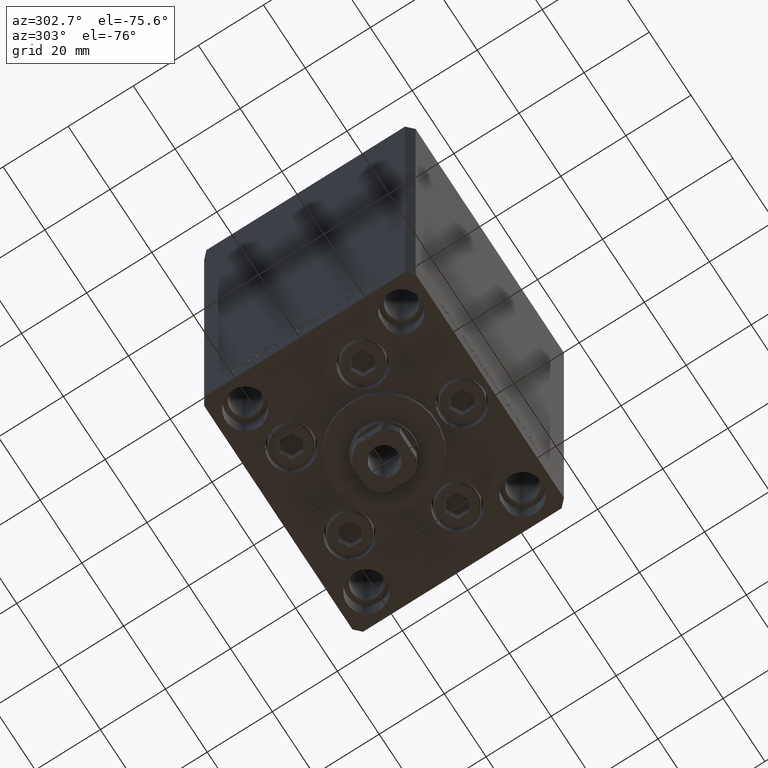
[diagram: clean part render]
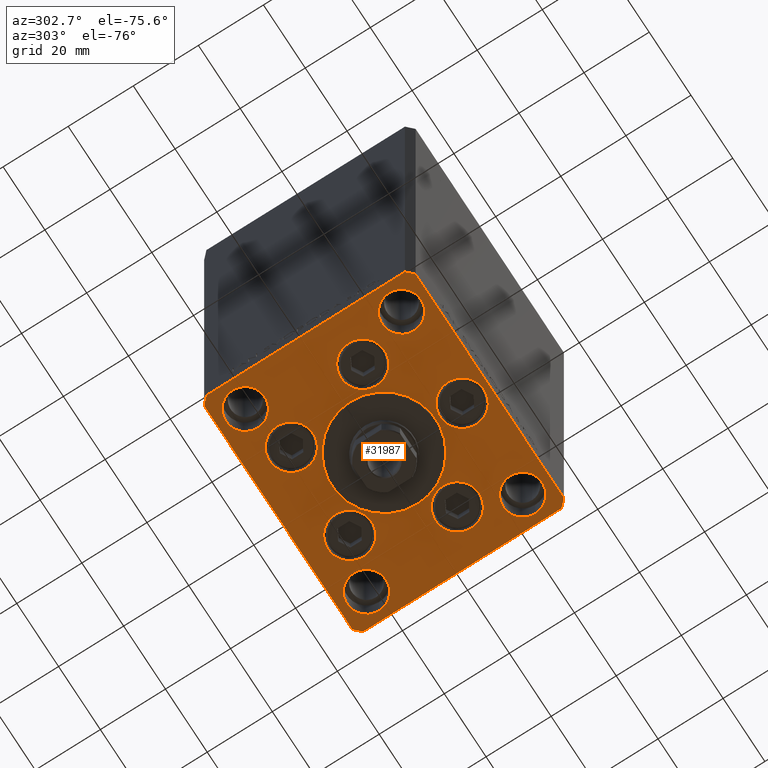
[diagram: same view with one face highlighted and labeled with its STEP entity id]
A machine part, auxiliary view. The second image highlights one B-rep face of the part: STEP entity #31987.
In plain terms, the highlighted planar face has unit normal (0, 0, -1).
Its self-contained STEP definition (entity closure, byte-faithful):
#16 = FACE_BOUND ( 'NONE', #27246, .T. ) ;
#126 = DIRECTION ( 'NONE',  ( 0.000000000000000000, 0.000000000000000000, 1.000000000000000000 ) ) ;
#286 = EDGE_CURVE ( 'NONE', #27862, #8358, #45759, .T. ) ;
#684 = AXIS2_PLACEMENT_3D ( 'NONE', #5038, #30700, #4048 ) ;
#894 = AXIS2_PLACEMENT_3D ( 'NONE', #17853, #2898, #18099 ) ;
#1116 = ORIENTED_EDGE ( 'NONE', *, *, #6892, .T. ) ;
#1153 = CARTESIAN_POINT ( 'NONE',  ( 20.74106857963323947, 19.50000000000000000, 0.000000000000000000 ) ) ;
#1159 = DIRECTION ( 'NONE',  ( 0.000000000000000000, 0.000000000000000000, 1.000000000000000000 ) ) ;
#1375 = DIRECTION ( 'NONE',  ( 0.7071067811865463515, 0.7071067811865487940, 0.000000000000000000 ) ) ;
#1533 = EDGE_CURVE ( 'NONE', #34090, #1744, #3521, .T. ) ;
#1571 = DIRECTION ( 'NONE',  ( 0.000000000000000000, 0.000000000000000000, 1.000000000000000000 ) ) ;
#1744 = VERTEX_POINT ( 'NONE', #2239 ) ;
#1778 = CARTESIAN_POINT ( 'NONE',  ( 15.87741699796952410, -8.000000000000000000, 0.000000000000000000 ) ) ;
#2041 = CARTESIAN_POINT ( 'NONE',  ( 37.50000000000000711, -30.49999999999992895, 0.000000000000000000 ) ) ;
#2216 = CARTESIAN_POINT ( 'NONE',  ( 23.00000000000000000, 24.00000000000000355, 0.000000000000000000 ) ) ;
#2239 = CARTESIAN_POINT ( 'NONE',  ( -35.50000000000000711, 32.49999999999997868, 0.000000000000000000 ) ) ;
#2898 = DIRECTION ( 'NONE',  ( 0.000000000000000000, 0.000000000000000000, 1.000000000000000000 ) ) ;
#2900 = EDGE_CURVE ( 'NONE', #17282, #20128, #43447, .T. ) ;
#3044 = VECTOR ( 'NONE', #9346, 1000.000000000000000 ) ;
#3204 = VERTEX_POINT ( 'NONE', #27028 ) ;
#3521 = LINE ( 'NONE', #45628, #41028 ) ;
#3621 = CIRCLE ( 'NONE', #16353, 6.750000000000000000 ) ;
#3749 = FACE_OUTER_BOUND ( 'NONE', #23911, .T. ) ;
#3756 = VECTOR ( 'NONE', #7267, 1000.000000000000000 ) ;
#4048 = DIRECTION ( 'NONE',  ( 1.000000000000000000, 0.000000000000000000, 0.000000000000000000 ) ) ;
#5038 = CARTESIAN_POINT ( 'NONE',  ( 0.000000000000000000, -24.00000000000001066, 0.000000000000000000 ) ) ;
#5471 = VERTEX_POINT ( 'NONE', #2216 ) ;
#5646 = DIRECTION ( 'NONE',  ( 0.000000000000000000, 0.000000000000000000, 1.000000000000000000 ) ) ;
#5677 = VERTEX_POINT ( 'NONE', #40519 ) ;
#6148 = ORIENTED_EDGE ( 'NONE', *, *, #8001, .F. ) ;
#6278 = ORIENTED_EDGE ( 'NONE', *, *, #19586, .F. ) ;
#6314 = ORIENTED_EDGE ( 'NONE', *, *, #25324, .F. ) ;
#6892 = EDGE_CURVE ( 'NONE', #3204, #48325, #17303, .T. ) ;
#6935 = ORIENTED_EDGE ( 'NONE', *, *, #8667, .F. ) ;
#6966 = EDGE_LOOP ( 'NONE', ( #48705, #33914 ) ) ;
#6978 = CARTESIAN_POINT ( 'NONE',  ( -29.00000000000000000, -23.99999999999999645, 0.000000000000000000 ) ) ;
#6987 = AXIS2_PLACEMENT_3D ( 'NONE', #9777, #17981, #20986 ) ;
#7267 = DIRECTION ( 'NONE',  ( -0.7071067811865524577, 0.7071067811865426878, 0.000000000000000000 ) ) ;
#7297 = EDGE_CURVE ( 'NONE', #13022, #21883, #45191, .T. ) ;
#7491 = FACE_BOUND ( 'NONE', #40849, .T. ) ;
#7633 = AXIS2_PLACEMENT_3D ( 'NONE', #19689, #22938, #15221 ) ;
#7927 = CARTESIAN_POINT ( 'NONE',  ( -15.87741699796953476, -8.000000000000000000, 0.000000000000000000 ) ) ;
#8001 = EDGE_CURVE ( 'NONE', #43630, #22501, #20584, .T. ) ;
#8098 = CARTESIAN_POINT ( 'NONE',  ( 13.99106857963324124, 19.50000000000000000, 0.000000000000000000 ) ) ;
#8223 = EDGE_CURVE ( 'NONE', #31189, #38631, #11011, .T. ) ;
#8233 = FACE_BOUND ( 'NONE', #36653, .T. ) ;
#8358 = VERTEX_POINT ( 'NONE', #28024 ) ;
#8521 = CARTESIAN_POINT ( 'NONE',  ( -13.99106857963324124, 19.50000000000000000, 0.000000000000000000 ) ) ;
#8667 = EDGE_CURVE ( 'NONE', #29030, #19003, #24560, .T. ) ;
#9346 = DIRECTION ( 'NONE',  ( 2.275047181608926165E-16, -1.000000000000000000, 0.000000000000000000 ) ) ;
#9486 = VECTOR ( 'NONE', #1375, 1000.000000000000000 ) ;
#9660 = AXIS2_PLACEMENT_3D ( 'NONE', #39225, #12824, #20782 ) ;
#9758 = EDGE_LOOP ( 'NONE', ( #28572, #18289 ) ) ;
#9777 = CARTESIAN_POINT ( 'NONE',  ( -22.62741699796953299, -8.000000000000000000, 0.000000000000000000 ) ) ;
#10047 = EDGE_CURVE ( 'NONE', #10879, #5677, #19935, .T. ) ;
#10199 = VECTOR ( 'NONE', #15700, 1000.000000000000000 ) ;
#10242 = CARTESIAN_POINT ( 'NONE',  ( 35.50000000000001421, -32.49999999999992184, 0.000000000000000000 ) ) ;
#10477 = CIRCLE ( 'NONE', #894, 6.000000000000001776 ) ;
#10486 = CARTESIAN_POINT ( 'NONE',  ( -6.750000000001552536, -24.00000000000001066, 0.000000000000000000 ) ) ;
#10879 = VERTEX_POINT ( 'NONE', #2041 ) ;
#11011 = CIRCLE ( 'NONE', #43659, 6.750000000000000000 ) ;
#11251 = VERTEX_POINT ( 'NONE', #38562 ) ;
#11323 = AXIS2_PLACEMENT_3D ( 'NONE', #8098, #126, #45966 ) ;
#11730 = PLANE ( 'NONE',  #7633 ) ;
#11980 = FACE_BOUND ( 'NONE', #28284, .T. ) ;
#12369 = AXIS2_PLACEMENT_3D ( 'NONE', #12596, #31512, #16817 ) ;
#12596 = CARTESIAN_POINT ( 'NONE',  ( 29.00000000000000355, -23.99999999999999645, 0.000000000000000000 ) ) ;
#12824 = DIRECTION ( 'NONE',  ( 0.000000000000000000, 0.000000000000000000, 1.000000000000000000 ) ) ;
#13022 = VERTEX_POINT ( 'NONE', #7927 ) ;
#13123 = DIRECTION ( 'NONE',  ( 1.000000000000000000, 0.000000000000000000, 0.000000000000000000 ) ) ;
#13487 = CARTESIAN_POINT ( 'NONE',  ( -23.00000000000000000, -23.99999999999999645, 0.000000000000000000 ) ) ;
#13495 = EDGE_CURVE ( 'NONE', #35801, #10879, #42987, .T. ) ;
#14195 = AXIS2_PLACEMENT_3D ( 'NONE', #16710, #43120, #27677 ) ;
#15215 = ORIENTED_EDGE ( 'NONE', *, *, #10047, .T. ) ;
#15221 = DIRECTION ( 'NONE',  ( 1.000000000000000000, 0.000000000000000000, 0.000000000000000000 ) ) ;
#15348 = AXIS2_PLACEMENT_3D ( 'NONE', #39894, #24696, #21453 ) ;
#15700 = DIRECTION ( 'NONE',  ( 0.000000000000000000, 1.000000000000000000, 0.000000000000000000 ) ) ;
#15831 = ORIENTED_EDGE ( 'NONE', *, *, #22928, .F. ) ;
#15965 = ORIENTED_EDGE ( 'NONE', *, *, #22663, .T. ) ;
#16005 = DIRECTION ( 'NONE',  ( 1.000000000000000000, 0.000000000000000000, 0.000000000000000000 ) ) ;
#16353 = AXIS2_PLACEMENT_3D ( 'NONE', #8521, #47150, #20726 ) ;
#16483 = ORIENTED_EDGE ( 'NONE', *, *, #38154, .T. ) ;
#16710 = CARTESIAN_POINT ( 'NONE',  ( 29.00000000000000000, 24.00000000000000355, 0.000000000000000000 ) ) ;
#16817 = DIRECTION ( 'NONE',  ( 1.000000000000000000, 0.000000000000000000, 0.000000000000000000 ) ) ;
#16961 = LINE ( 'NONE', #27429, #33746 ) ;
#17242 = CIRCLE ( 'NONE', #41107, 6.749999999999999112 ) ;
#17282 = VERTEX_POINT ( 'NONE', #13487 ) ;
#17297 = VERTEX_POINT ( 'NONE', #1778 ) ;
#17303 = LINE ( 'NONE', #24541, #3044 ) ;
#17472 = EDGE_CURVE ( 'NONE', #11251, #40877, #26339, .T. ) ;
#17853 = CARTESIAN_POINT ( 'NONE',  ( -29.00000000000000000, 24.00000000000000711, 0.000000000000000000 ) ) ;
#17981 = DIRECTION ( 'NONE',  ( 0.000000000000000000, 0.000000000000000000, 1.000000000000000000 ) ) ;
#18099 = DIRECTION ( 'NONE',  ( 1.000000000000000000, 0.000000000000000000, 0.000000000000000000 ) ) ;
#18158 = EDGE_CURVE ( 'NONE', #5471, #29622, #31123, .T. ) ;
#18289 = ORIENTED_EDGE ( 'NONE', *, *, #286, .F. ) ;
#18343 = CARTESIAN_POINT ( 'NONE',  ( -20.74106857963324302, 19.50000000000000000, 0.000000000000000000 ) ) ;
#19003 = VERTEX_POINT ( 'NONE', #30462 ) ;
#19206 = FACE_BOUND ( 'NONE', #21086, .T. ) ;
#19586 = EDGE_CURVE ( 'NONE', #45667, #45607, #10477, .T. ) ;
#19689 = CARTESIAN_POINT ( 'NONE',  ( 0.000000000000000000, 0.000000000000000000, 0.000000000000000000 ) ) ;
#19743 = DIRECTION ( 'NONE',  ( 0.000000000000000000, 0.000000000000000000, 1.000000000000000000 ) ) ;
#19834 = CARTESIAN_POINT ( 'NONE',  ( 35.50000000000000000, 32.49999999999999289, 0.000000000000000000 ) ) ;
#19935 = LINE ( 'NONE', #26921, #10199 ) ;
#19943 = AXIS2_PLACEMENT_3D ( 'NONE', #43492, #39505, #39011 ) ;
#20101 = CARTESIAN_POINT ( 'NONE',  ( -29.00000000000000000, -23.99999999999999645, 0.000000000000000000 ) ) ;
#20128 = VERTEX_POINT ( 'NONE', #47342 ) ;
#20316 = CARTESIAN_POINT ( 'NONE',  ( 35.50000000000001421, -32.49999999999992184, 0.000000000000000000 ) ) ;
#20510 = DIRECTION ( 'NONE',  ( 1.000000000000000000, 0.000000000000000000, 0.000000000000000000 ) ) ;
#20584 = CIRCLE ( 'NONE', #33308, 6.749999999999997335 ) ;
#20726 = DIRECTION ( 'NONE',  ( 1.000000000000000000, 0.000000000000000000, 0.000000000000000000 ) ) ;
#20782 = DIRECTION ( 'NONE',  ( 1.000000000000000000, 0.000000000000000000, 0.000000000000000000 ) ) ;
#20986 = DIRECTION ( 'NONE',  ( 1.000000000000000000, 0.000000000000000000, 0.000000000000000000 ) ) ;
#21086 = EDGE_LOOP ( 'NONE', ( #39534, #31699 ) ) ;
#21453 = DIRECTION ( 'NONE',  ( 1.000000000000000000, 0.000000000000000000, 0.000000000000000000 ) ) ;
#21628 = CARTESIAN_POINT ( 'NONE',  ( 22.62741699796953299, -8.000000000000000000, 0.000000000000000000 ) ) ;
#21883 = VERTEX_POINT ( 'NONE', #37421 ) ;
#21959 = AXIS2_PLACEMENT_3D ( 'NONE', #20101, #1159, #47741 ) ;
#21968 = CIRCLE ( 'NONE', #34701, 16.00000000000000355 ) ;
#22329 = CIRCLE ( 'NONE', #29515, 6.750000000000009770 ) ;
#22501 = VERTEX_POINT ( 'NONE', #1153 ) ;
#22663 = EDGE_CURVE ( 'NONE', #1744, #3204, #40498, .T. ) ;
#22689 = FACE_BOUND ( 'NONE', #6966, .T. ) ;
#22928 = EDGE_CURVE ( 'NONE', #45607, #45667, #26471, .T. ) ;
#22938 = DIRECTION ( 'NONE',  ( -0.000000000000000000, 0.000000000000000000, 1.000000000000000000 ) ) ;
#23157 = DIRECTION ( 'NONE',  ( 0.000000000000000000, 0.000000000000000000, 1.000000000000000000 ) ) ;
#23583 = DIRECTION ( 'NONE',  ( 0.000000000000000000, 0.000000000000000000, 1.000000000000000000 ) ) ;
#23813 = VECTOR ( 'NONE', #32386, 1000.000000000000000 ) ;
#23911 = EDGE_LOOP ( 'NONE', ( #28845, #47392, #41588, #15215, #16483, #43709, #15965, #1116 ) ) ;
#24220 = EDGE_CURVE ( 'NONE', #49157, #17297, #48670, .T. ) ;
#24266 = CARTESIAN_POINT ( 'NONE',  ( -35.00000000000000000, 24.00000000000000711, 0.000000000000000000 ) ) ;
#24541 = CARTESIAN_POINT ( 'NONE',  ( -37.50000000000001421, 30.50000000000000000, 0.000000000000000000 ) ) ;
#24560 = CIRCLE ( 'NONE', #684, 6.750000000001552536 ) ;
#24581 = CARTESIAN_POINT ( 'NONE',  ( -13.99106857963324124, 19.50000000000000000, 0.000000000000000000 ) ) ;
#24696 = DIRECTION ( 'NONE',  ( 0.000000000000000000, 0.000000000000000000, 1.000000000000000000 ) ) ;
#24770 = AXIS2_PLACEMENT_3D ( 'NONE', #39339, #23157, #38358 ) ;
#25145 = AXIS2_PLACEMENT_3D ( 'NONE', #26729, #19743, #16005 ) ;
#25324 = EDGE_CURVE ( 'NONE', #22501, #43630, #33583, .T. ) ;
#26047 = CARTESIAN_POINT ( 'NONE',  ( -35.50000000000000711, 32.49999999999997868, 0.000000000000000000 ) ) ;
#26216 = LINE ( 'NONE', #41401, #3756 ) ;
#26339 = CIRCLE ( 'NONE', #24770, 16.00000000000000355 ) ;
#26471 = CIRCLE ( 'NONE', #15348, 6.000000000000001776 ) ;
#26729 = CARTESIAN_POINT ( 'NONE',  ( 29.00000000000000355, -23.99999999999999645, 0.000000000000000000 ) ) ;
#26784 = EDGE_CURVE ( 'NONE', #48325, #34577, #16961, .T. ) ;
#26921 = CARTESIAN_POINT ( 'NONE',  ( 37.50000000000000711, -30.49999999999992895, 0.000000000000000000 ) ) ;
#27028 = CARTESIAN_POINT ( 'NONE',  ( -37.50000000000001421, 30.50000000000000000, 0.000000000000000000 ) ) ;
#27122 = EDGE_LOOP ( 'NONE', ( #15831, #6278 ) ) ;
#27179 = DIRECTION ( 'NONE',  ( -1.000000000000000000, -1.954618001100627573E-16, 0.000000000000000000 ) ) ;
#27246 = EDGE_LOOP ( 'NONE', ( #42653, #41084 ) ) ;
#27429 = CARTESIAN_POINT ( 'NONE',  ( -37.50000000000000000, -30.50000000000004263, 0.000000000000000000 ) ) ;
#27677 = DIRECTION ( 'NONE',  ( 1.000000000000000000, 0.000000000000000000, 0.000000000000000000 ) ) ;
#27707 = ORIENTED_EDGE ( 'NONE', *, *, #30745, .F. ) ;
#27862 = VERTEX_POINT ( 'NONE', #41842 ) ;
#28024 = CARTESIAN_POINT ( 'NONE',  ( 35.00000000000000000, -23.99999999999999645, 0.000000000000000000 ) ) ;
#28284 = EDGE_LOOP ( 'NONE', ( #6314, #6148 ) ) ;
#28572 = ORIENTED_EDGE ( 'NONE', *, *, #31752, .F. ) ;
#28845 = ORIENTED_EDGE ( 'NONE', *, *, #26784, .T. ) ;
#29030 = VERTEX_POINT ( 'NONE', #10486 ) ;
#29101 = CARTESIAN_POINT ( 'NONE',  ( -7.241068579633241242, 19.50000000000000000, 0.000000000000000000 ) ) ;
#29118 = EDGE_CURVE ( 'NONE', #20128, #17282, #40172, .T. ) ;
#29362 = DIRECTION ( 'NONE',  ( 0.000000000000000000, 0.000000000000000000, 1.000000000000000000 ) ) ;
#29515 = AXIS2_PLACEMENT_3D ( 'NONE', #36883, #36638, #37122 ) ;
#29622 = VERTEX_POINT ( 'NONE', #37982 ) ;
#30462 = CARTESIAN_POINT ( 'NONE',  ( 6.750000000001552536, -24.00000000000001066, 0.000000000000000000 ) ) ;
#30700 = DIRECTION ( 'NONE',  ( 0.000000000000000000, 0.000000000000000000, 1.000000000000000000 ) ) ;
#30745 = EDGE_CURVE ( 'NONE', #38631, #31189, #3621, .T. ) ;
#31123 = CIRCLE ( 'NONE', #9660, 6.000000000000001776 ) ;
#31189 = VERTEX_POINT ( 'NONE', #18343 ) ;
#31273 = VECTOR ( 'NONE', #44489, 1000.000000000000000 ) ;
#31512 = DIRECTION ( 'NONE',  ( 0.000000000000000000, 0.000000000000000000, 1.000000000000000000 ) ) ;
#31699 = ORIENTED_EDGE ( 'NONE', *, *, #47805, .F. ) ;
#31752 = EDGE_CURVE ( 'NONE', #8358, #27862, #46623, .T. ) ;
#31906 = DIRECTION ( 'NONE',  ( 0.7071067811865512365, -0.7071067811865439090, 0.000000000000000000 ) ) ;
#31960 = ORIENTED_EDGE ( 'NONE', *, *, #17472, .F. ) ;
#31987 = ADVANCED_FACE ( 'NONE', ( #34642, #7491, #11980, #19206, #34400, #8233, #22689, #41379, #16, #38617, #3749 ), #11730, .T. ) ;
#32249 = EDGE_LOOP ( 'NONE', ( #35519, #6935 ) ) ;
#32386 = DIRECTION ( 'NONE',  ( 1.000000000000000000, 1.172770800660376149E-15, 0.000000000000000000 ) ) ;
#33172 = EDGE_CURVE ( 'NONE', #40877, #11251, #21968, .T. ) ;
#33308 = AXIS2_PLACEMENT_3D ( 'NONE', #35050, #23583, #13123 ) ;
#33550 = AXIS2_PLACEMENT_3D ( 'NONE', #21628, #29362, #36579 ) ;
#33583 = CIRCLE ( 'NONE', #11323, 6.749999999999997335 ) ;
#33641 = DIRECTION ( 'NONE',  ( 1.000000000000000000, 0.000000000000000000, 0.000000000000000000 ) ) ;
#33746 = VECTOR ( 'NONE', #31906, 1000.000000000000000 ) ;
#33914 = ORIENTED_EDGE ( 'NONE', *, *, #18158, .F. ) ;
#33958 = ORIENTED_EDGE ( 'NONE', *, *, #7297, .F. ) ;
#34090 = VERTEX_POINT ( 'NONE', #19834 ) ;
#34124 = EDGE_CURVE ( 'NONE', #21883, #13022, #17242, .T. ) ;
#34400 = FACE_BOUND ( 'NONE', #32249, .T. ) ;
#34577 = VERTEX_POINT ( 'NONE', #39573 ) ;
#34642 = FACE_BOUND ( 'NONE', #40885, .T. ) ;
#34674 = CARTESIAN_POINT ( 'NONE',  ( -37.50000000000000000, -30.50000000000004263, 0.000000000000000000 ) ) ;
#34701 = AXIS2_PLACEMENT_3D ( 'NONE', #47658, #1571, #20510 ) ;
#35050 = CARTESIAN_POINT ( 'NONE',  ( 13.99106857963324124, 19.50000000000000000, 0.000000000000000000 ) ) ;
#35519 = ORIENTED_EDGE ( 'NONE', *, *, #47140, .F. ) ;
#35801 = VERTEX_POINT ( 'NONE', #10242 ) ;
#36451 = ORIENTED_EDGE ( 'NONE', *, *, #8223, .F. ) ;
#36579 = DIRECTION ( 'NONE',  ( 1.000000000000000000, 0.000000000000000000, 0.000000000000000000 ) ) ;
#36638 = DIRECTION ( 'NONE',  ( 0.000000000000000000, 0.000000000000000000, 1.000000000000000000 ) ) ;
#36653 = EDGE_LOOP ( 'NONE', ( #33958, #43732 ) ) ;
#36883 = CARTESIAN_POINT ( 'NONE',  ( 22.62741699796953299, -8.000000000000000000, 0.000000000000000000 ) ) ;
#37122 = DIRECTION ( 'NONE',  ( 1.000000000000000000, 0.000000000000000000, 0.000000000000000000 ) ) ;
#37375 = DIRECTION ( 'NONE',  ( 0.000000000000000000, 0.000000000000000000, 1.000000000000000000 ) ) ;
#37421 = CARTESIAN_POINT ( 'NONE',  ( -29.37741699796953654, -8.000000000000000000, 0.000000000000000000 ) ) ;
#37982 = CARTESIAN_POINT ( 'NONE',  ( 35.00000000000000000, 24.00000000000000355, 0.000000000000000000 ) ) ;
#38154 = EDGE_CURVE ( 'NONE', #5677, #34090, #26216, .T. ) ;
#38358 = DIRECTION ( 'NONE',  ( 1.000000000000000000, 0.000000000000000000, 0.000000000000000000 ) ) ;
#38562 = CARTESIAN_POINT ( 'NONE',  ( 16.00000000000000355, -4.979459025271462852E-15, 0.000000000000000000 ) ) ;
#38617 = FACE_BOUND ( 'NONE', #9758, .T. ) ;
#38631 = VERTEX_POINT ( 'NONE', #29101 ) ;
#38743 = CARTESIAN_POINT ( 'NONE',  ( 29.37741699796954364, -8.000000000000000000, 0.000000000000000000 ) ) ;
#38763 = CARTESIAN_POINT ( 'NONE',  ( -22.62741699796953299, -8.000000000000000000, 0.000000000000000000 ) ) ;
#39011 = DIRECTION ( 'NONE',  ( 1.000000000000000000, 0.000000000000000000, 0.000000000000000000 ) ) ;
#39225 = CARTESIAN_POINT ( 'NONE',  ( 29.00000000000000000, 24.00000000000000355, 0.000000000000000000 ) ) ;
#39339 = CARTESIAN_POINT ( 'NONE',  ( 0.000000000000000000, -6.938893903907228378E-15, 0.000000000000000000 ) ) ;
#39372 = AXIS2_PLACEMENT_3D ( 'NONE', #6978, #37375, #33641 ) ;
#39505 = DIRECTION ( 'NONE',  ( 0.000000000000000000, 0.000000000000000000, 1.000000000000000000 ) ) ;
#39534 = ORIENTED_EDGE ( 'NONE', *, *, #24220, .F. ) ;
#39573 = CARTESIAN_POINT ( 'NONE',  ( -35.50000000000001421, -32.50000000000000711, 0.000000000000000000 ) ) ;
#39894 = CARTESIAN_POINT ( 'NONE',  ( -29.00000000000000000, 24.00000000000000711, 0.000000000000000000 ) ) ;
#40172 = CIRCLE ( 'NONE', #39372, 6.000000000000001776 ) ;
#40357 = CARTESIAN_POINT ( 'NONE',  ( -35.50000000000001421, -32.50000000000000711, 0.000000000000000000 ) ) ;
#40423 = CIRCLE ( 'NONE', #14195, 6.000000000000001776 ) ;
#40498 = LINE ( 'NONE', #26047, #31273 ) ;
#40519 = CARTESIAN_POINT ( 'NONE',  ( 37.50000000000000711, 30.50000000000001421, 0.000000000000000000 ) ) ;
#40781 = EDGE_CURVE ( 'NONE', #29622, #5471, #40423, .T. ) ;
#40847 = CARTESIAN_POINT ( 'NONE',  ( -16.00000000000000355, -6.938893903907228378E-15, 0.000000000000000000 ) ) ;
#40849 = EDGE_LOOP ( 'NONE', ( #27707, #36451 ) ) ;
#40877 = VERTEX_POINT ( 'NONE', #40847 ) ;
#40885 = EDGE_LOOP ( 'NONE', ( #46892, #31960 ) ) ;
#41028 = VECTOR ( 'NONE', #27179, 1000.000000000000000 ) ;
#41032 = CARTESIAN_POINT ( 'NONE',  ( 7.241068579633242130, 19.50000000000000000, 0.000000000000000000 ) ) ;
#41084 = ORIENTED_EDGE ( 'NONE', *, *, #29118, .F. ) ;
#41107 = AXIS2_PLACEMENT_3D ( 'NONE', #38763, #42754, #47237 ) ;
#41379 = FACE_BOUND ( 'NONE', #27122, .T. ) ;
#41401 = CARTESIAN_POINT ( 'NONE',  ( 37.50000000000000711, 30.50000000000001421, 0.000000000000000000 ) ) ;
#41588 = ORIENTED_EDGE ( 'NONE', *, *, #13495, .T. ) ;
#41842 = CARTESIAN_POINT ( 'NONE',  ( 23.00000000000000711, -23.99999999999999645, 0.000000000000000000 ) ) ;
#42653 = ORIENTED_EDGE ( 'NONE', *, *, #2900, .F. ) ;
#42754 = DIRECTION ( 'NONE',  ( 0.000000000000000000, 0.000000000000000000, 1.000000000000000000 ) ) ;
#42987 = LINE ( 'NONE', #20316, #9486 ) ;
#43120 = DIRECTION ( 'NONE',  ( 0.000000000000000000, 0.000000000000000000, 1.000000000000000000 ) ) ;
#43290 = EDGE_CURVE ( 'NONE', #34577, #35801, #47357, .T. ) ;
#43447 = CIRCLE ( 'NONE', #21959, 6.000000000000001776 ) ;
#43492 = CARTESIAN_POINT ( 'NONE',  ( 0.000000000000000000, -24.00000000000001066, 0.000000000000000000 ) ) ;
#43630 = VERTEX_POINT ( 'NONE', #41032 ) ;
#43659 = AXIS2_PLACEMENT_3D ( 'NONE', #24581, #5646, #47745 ) ;
#43709 = ORIENTED_EDGE ( 'NONE', *, *, #1533, .T. ) ;
#43732 = ORIENTED_EDGE ( 'NONE', *, *, #34124, .F. ) ;
#44489 = DIRECTION ( 'NONE',  ( -0.7071067811865524577, -0.7071067811865426878, 0.000000000000000000 ) ) ;
#45191 = CIRCLE ( 'NONE', #6987, 6.749999999999999112 ) ;
#45407 = CIRCLE ( 'NONE', #19943, 6.750000000001552536 ) ;
#45607 = VERTEX_POINT ( 'NONE', #49217 ) ;
#45628 = CARTESIAN_POINT ( 'NONE',  ( 35.50000000000000000, 32.49999999999999289, 0.000000000000000000 ) ) ;
#45667 = VERTEX_POINT ( 'NONE', #24266 ) ;
#45759 = CIRCLE ( 'NONE', #12369, 5.999999999999998224 ) ;
#45966 = DIRECTION ( 'NONE',  ( 1.000000000000000000, 0.000000000000000000, 0.000000000000000000 ) ) ;
#46623 = CIRCLE ( 'NONE', #25145, 5.999999999999998224 ) ;
#46892 = ORIENTED_EDGE ( 'NONE', *, *, #33172, .F. ) ;
#47140 = EDGE_CURVE ( 'NONE', #19003, #29030, #45407, .T. ) ;
#47150 = DIRECTION ( 'NONE',  ( 0.000000000000000000, 0.000000000000000000, 1.000000000000000000 ) ) ;
#47237 = DIRECTION ( 'NONE',  ( 1.000000000000000000, 0.000000000000000000, 0.000000000000000000 ) ) ;
#47342 = CARTESIAN_POINT ( 'NONE',  ( -35.00000000000000000, -23.99999999999999645, 0.000000000000000000 ) ) ;
#47357 = LINE ( 'NONE', #40357, #23813 ) ;
#47392 = ORIENTED_EDGE ( 'NONE', *, *, #43290, .T. ) ;
#47658 = CARTESIAN_POINT ( 'NONE',  ( 0.000000000000000000, -6.938893903907228378E-15, 0.000000000000000000 ) ) ;
#47741 = DIRECTION ( 'NONE',  ( 1.000000000000000000, 0.000000000000000000, 0.000000000000000000 ) ) ;
#47745 = DIRECTION ( 'NONE',  ( 1.000000000000000000, 0.000000000000000000, 0.000000000000000000 ) ) ;
#47805 = EDGE_CURVE ( 'NONE', #17297, #49157, #22329, .T. ) ;
#48325 = VERTEX_POINT ( 'NONE', #34674 ) ;
#48670 = CIRCLE ( 'NONE', #33550, 6.750000000000009770 ) ;
#48705 = ORIENTED_EDGE ( 'NONE', *, *, #40781, .F. ) ;
#49157 = VERTEX_POINT ( 'NONE', #38743 ) ;
#49217 = CARTESIAN_POINT ( 'NONE',  ( -23.00000000000000000, 24.00000000000000711, 0.000000000000000000 ) ) ;